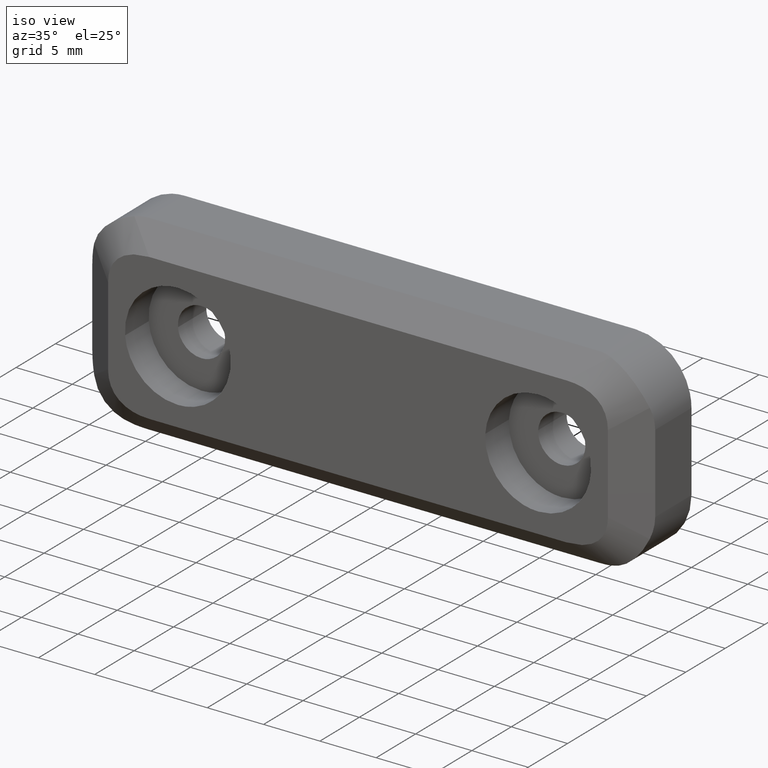
[diagram: clean part render]
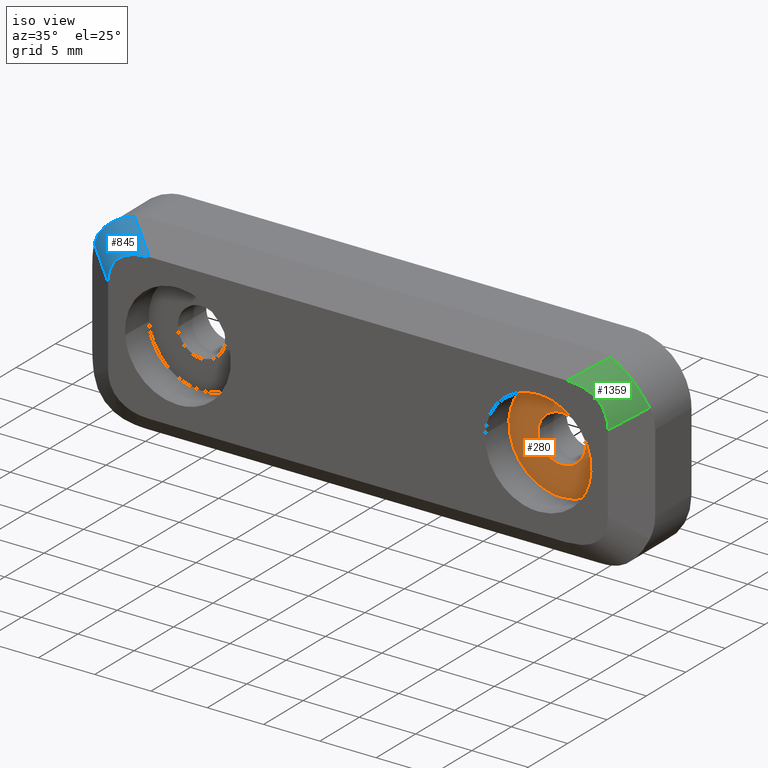
[diagram: same view with three faces highlighted in distinct colors, each labeled with its STEP entity id]
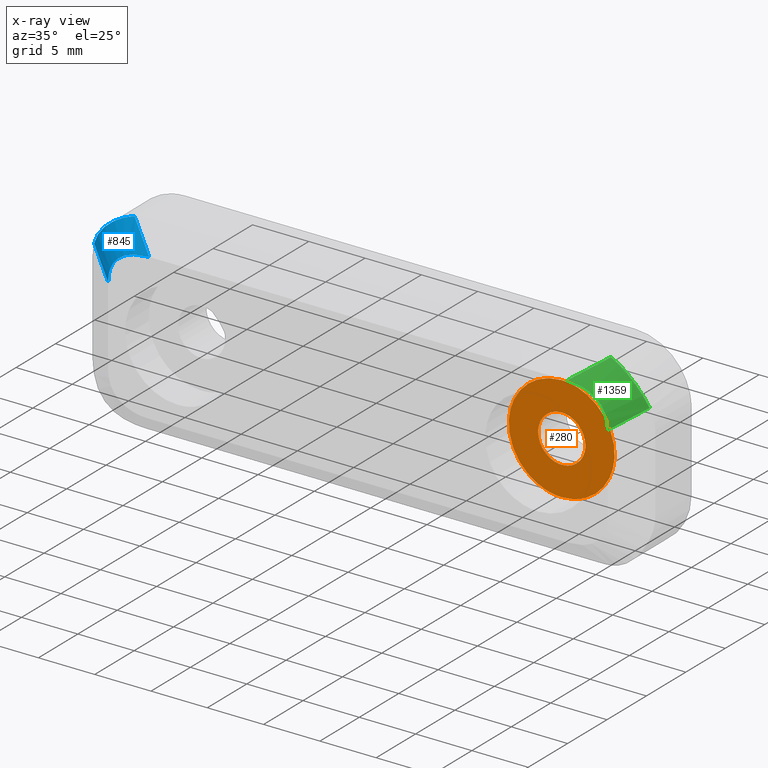
[diagram: x-ray of the same camera — body ghosted, the three highlighted faces saturated]
A machine part, iso view with three faces highlighted in distinct colors.
The next image is the same camera in x-ray (body ghosted, the three faces saturated) — at least one of them is partly hidden behind the body in this view.
Their STEP definitions:

[orange] entity #280 — the highlighted face is a freeform B-spline surface patch.
#143=CARTESIAN_POINT('',(10.830585679646809,-3.600000000000000,-5.169529981780976));
#144=CARTESIAN_POINT('',(10.830585679646809,-3.600000000000000,5.169530233908624));
#145=CARTESIAN_POINT('',(21.169414152268089,-3.600000000000000,-5.169529981780976));
#146=CARTESIAN_POINT('',(21.169414152268089,-3.600000000000000,5.169530233908623));
#147=B_SPLINE_SURFACE_WITH_KNOTS('',1,1,((#143,#145),(#144,#146)),.UNSPECIFIED.,.F.,.F.,.U.,(2,2),(2,2),(0.0,10.339060215689599),(0.0,10.338828472621280),.UNSPECIFIED.);
#148=CARTESIAN_POINT('',(16.0,-3.600000000000000,-4.700000000000000));
#149=VERTEX_POINT('',#148);
#150=CARTESIAN_POINT('',(20.691233552581039,-3.600000000000000,-0.286928135842115));
#151=VERTEX_POINT('',#150);
#152=CARTESIAN_POINT('',(16.0,-3.600000000000000,-4.700000000000000));
#153=CARTESIAN_POINT('',(20.421318514430066,-3.600000000000001,-4.700000000000001));
#154=CARTESIAN_POINT('',(20.691233552581046,-3.600000000000000,-0.286928135842115));
#162=(BOUNDED_CURVE()B_SPLINE_CURVE(2,(#152,#153,#154),.UNSPECIFIED.,.F.,.U.)B_SPLINE_CURVE_WITH_KNOTS((3,3),(0.0,0.239332962240928),.UNSPECIFIED.)CURVE()GEOMETRIC_REPRESENTATION_ITEM()RATIONAL_B_SPLINE_CURVE((1.0,0.719603993284385,0.976072041670972))REPRESENTATION_ITEM(''));
#163=EDGE_CURVE('',#149,#151,#162,.T.);
#164=ORIENTED_EDGE('',*,*,#163,.T.);
#165=CARTESIAN_POINT('',(16.0,-3.600000000000000,4.700000000000000));
#166=VERTEX_POINT('',#165);
#167=CARTESIAN_POINT('',(20.691233552581046,-3.600000000000000,-0.286928135842115));
#168=CARTESIAN_POINT('',(20.699999999999996,-3.599999999999999,-0.143597987517551));
#169=CARTESIAN_POINT('',(20.699999999999999,-3.600000000000000,0.0));
#170=CARTESIAN_POINT('',(20.699999999999996,-3.600000000000000,4.700000000000000));
#171=CARTESIAN_POINT('',(16.0,-3.600000000000000,4.700000000000000));
#179=(BOUNDED_CURVE()B_SPLINE_CURVE(2,(#167,#168,#169,#170,#171),.UNSPECIFIED.,.F.,.U.)B_SPLINE_CURVE_WITH_KNOTS((3,2,3),(0.239332962240928,0.250000000000000,0.500000000000000),.UNSPECIFIED.)CURVE()GEOMETRIC_REPRESENTATION_ITEM()RATIONAL_B_SPLINE_CURVE((0.976072041670972,0.987502787902163,1.0,0.707106781186547,1.0))REPRESENTATION_ITEM(''));
#180=EDGE_CURVE('',#151,#166,#179,.T.);
#181=ORIENTED_EDGE('',*,*,#180,.T.);
#182=CARTESIAN_POINT('',(11.308766447418961,-3.600000000000000,0.286928135842115));
#183=VERTEX_POINT('',#182);
#184=CARTESIAN_POINT('',(16.0,-3.600000000000000,4.700000000000000));
#185=CARTESIAN_POINT('',(11.578681485569946,-3.600000000000001,4.700000000000000));
#186=CARTESIAN_POINT('',(11.308766447418952,-3.599999999999999,0.286928135842116));
#194=(BOUNDED_CURVE()B_SPLINE_CURVE(2,(#184,#185,#186),.UNSPECIFIED.,.F.,.U.)B_SPLINE_CURVE_WITH_KNOTS((3,3),(0.500000000000000,0.739332962240928),.UNSPECIFIED.)CURVE()GEOMETRIC_REPRESENTATION_ITEM()RATIONAL_B_SPLINE_CURVE((1.0,0.719603993284385,0.976072041670972))REPRESENTATION_ITEM(''));
#195=EDGE_CURVE('',#166,#183,#194,.T.);
#196=ORIENTED_EDGE('',*,*,#195,.T.);
#197=CARTESIAN_POINT('',(11.308766447418952,-3.599999999999999,0.286928135842116));
#198=CARTESIAN_POINT('',(11.300000000000001,-3.600000000000000,0.143597987517552));
#199=CARTESIAN_POINT('',(11.300000000000001,-3.600000000000000,0.0));
#200=CARTESIAN_POINT('',(11.300000000000001,-3.600000000000000,-4.700000000000000));
#201=CARTESIAN_POINT('',(16.0,-3.600000000000000,-4.700000000000000));
#209=(BOUNDED_CURVE()B_SPLINE_CURVE(2,(#197,#198,#199,#200,#201),.UNSPECIFIED.,.F.,.U.)B_SPLINE_CURVE_WITH_KNOTS((3,2,3),(0.739332962240928,0.750000000000000,1.0),.UNSPECIFIED.)CURVE()GEOMETRIC_REPRESENTATION_ITEM()RATIONAL_B_SPLINE_CURVE((0.976072041670972,0.987502787902163,1.0,0.707106781186547,1.0))REPRESENTATION_ITEM(''));
#210=EDGE_CURVE('',#183,#149,#209,.T.);
#211=ORIENTED_EDGE('',*,*,#210,.T.);
#212=EDGE_LOOP('',(#164,#181,#196,#211));
#213=FACE_OUTER_BOUND('',#212,.T.);
#214=CARTESIAN_POINT('',(16.0,-3.600000000000000,2.100000000000025));
#215=VERTEX_POINT('',#214);
#216=CARTESIAN_POINT('',(13.903916923320651,-3.600000000000000,0.128201933131102));
#217=VERTEX_POINT('',#216);
#218=CARTESIAN_POINT('',(16.0,-3.600000000000000,2.100000000000025));
#219=CARTESIAN_POINT('',(14.024517259599902,-3.600000000000001,2.100000000000025));
#220=CARTESIAN_POINT('',(13.903916923320651,-3.600000000000001,0.128201933131101));
#228=(BOUNDED_CURVE()B_SPLINE_CURVE(2,(#218,#219,#220),.UNSPECIFIED.,.F.,.U.)B_SPLINE_CURVE_WITH_KNOTS((3,3),(0.500000000000000,0.739332962233086),.UNSPECIFIED.)CURVE()GEOMETRIC_REPRESENTATION_ITEM()RATIONAL_B_SPLINE_CURVE((1.0,0.719603993293572,0.976072041654166))REPRESENTATION_ITEM(''));
#229=EDGE_CURVE('',#215,#217,#228,.T.);
#230=ORIENTED_EDGE('',*,*,#229,.F.);
#231=CARTESIAN_POINT('',(18.096083076679349,-3.600000000000000,-0.128201933131102));
#232=VERTEX_POINT('',#231);
#233=CARTESIAN_POINT('',(18.096083076679346,-3.600000000000001,-0.128201933131102));
#234=CARTESIAN_POINT('',(18.100000000000030,-3.600000000000000,-0.064160802981139));
#235=CARTESIAN_POINT('',(18.100000000000030,-3.600000000000000,0.0));
#236=CARTESIAN_POINT('',(18.100000000000026,-3.600000000000000,2.100000000000025));
#237=CARTESIAN_POINT('',(16.0,-3.600000000000000,2.100000000000025));
#245=(BOUNDED_CURVE()B_SPLINE_CURVE(2,(#233,#234,#235,#236,#237),.UNSPECIFIED.,.F.,.U.)B_SPLINE_CURVE_WITH_KNOTS((3,2,3),(0.239332962233086,0.250000000000000,0.500000000000000),.UNSPECIFIED.)CURVE()GEOMETRIC_REPRESENTATION_ITEM()RATIONAL_B_SPLINE_CURVE((0.976072041654165,0.987502787892976,1.0,0.707106781186548,1.0))REPRESENTATION_ITEM(''));
#246=EDGE_CURVE('',#232,#215,#245,.T.);
#247=ORIENTED_EDGE('',*,*,#246,.F.);
#248=CARTESIAN_POINT('',(16.0,-3.600000000000000,-2.100000000000025));
#249=VERTEX_POINT('',#248);
#250=CARTESIAN_POINT('',(16.0,-3.600000000000000,-2.100000000000025));
#251=CARTESIAN_POINT('',(17.975482740400096,-3.600000000000000,-2.100000000000025));
#252=CARTESIAN_POINT('',(18.096083076679346,-3.600000000000001,-0.128201933131102));
#260=(BOUNDED_CURVE()B_SPLINE_CURVE(2,(#250,#251,#252),.UNSPECIFIED.,.F.,.U.)B_SPLINE_CURVE_WITH_KNOTS((3,3),(0.0,0.239332962233086),.UNSPECIFIED.)CURVE()GEOMETRIC_REPRESENTATION_ITEM()RATIONAL_B_SPLINE_CURVE((1.0,0.719603993293572,0.976072041654165))REPRESENTATION_ITEM(''));
#261=EDGE_CURVE('',#249,#232,#260,.T.);
#262=ORIENTED_EDGE('',*,*,#261,.F.);
#263=CARTESIAN_POINT('',(13.903916923320651,-3.600000000000001,0.128201933131101));
#264=CARTESIAN_POINT('',(13.899999999999977,-3.599999999999999,0.064160802981139));
#265=CARTESIAN_POINT('',(13.899999999999981,-3.600000000000000,0.0));
#266=CARTESIAN_POINT('',(13.899999999999974,-3.600000000000000,-2.100000000000025));
#267=CARTESIAN_POINT('',(16.0,-3.600000000000000,-2.100000000000025));
#275=(BOUNDED_CURVE()B_SPLINE_CURVE(2,(#263,#264,#265,#266,#267),.UNSPECIFIED.,.F.,.U.)B_SPLINE_CURVE_WITH_KNOTS((3,2,3),(0.739332962233086,0.750000000000000,1.0),.UNSPECIFIED.)CURVE()GEOMETRIC_REPRESENTATION_ITEM()RATIONAL_B_SPLINE_CURVE((0.976072041654166,0.987502787892976,1.0,0.707106781186548,1.0))REPRESENTATION_ITEM(''));
#276=EDGE_CURVE('',#217,#249,#275,.T.);
#277=ORIENTED_EDGE('',*,*,#276,.F.);
#278=EDGE_LOOP('',(#230,#247,#262,#277));
#279=FACE_BOUND('',#278,.T.);
#280=ADVANCED_FACE('',(#213,#279),#147,.F.);

[blue] entity #845 — the highlighted face is a freeform B-spline surface patch.
#769=CARTESIAN_POINT('',(-24.844580361955021,-4.708535620912073,5.223180418240770));
#770=CARTESIAN_POINT('',(-21.427154597051540,-7.149554024415364,2.782162014737446));
#771=CARTESIAN_POINT('',(-23.731832549381735,-5.602363695713251,7.674855430643981));
#772=CARTESIAN_POINT('',(-20.314406784478273,-8.043382099216544,5.233837027140656));
#773=CARTESIAN_POINT('',(-21.717892955092381,-4.100246997932264,8.992254164867152));
#774=CARTESIAN_POINT('',(-18.300467190188904,-6.541265401435561,6.551235761363829));
#782=(BOUNDED_SURFACE()B_SPLINE_SURFACE(1,2,((#769,#771,#773),(#770,#772,#774)),.UNSPECIFIED.,.F.,.F.,.U.)B_SPLINE_SURFACE_WITH_KNOTS((2,2),(3,3),(0.0,4.857565290462889),(0.0,5.278502488064073),.UNSPECIFIED.)GEOMETRIC_REPRESENTATION_ITEM()RATIONAL_B_SPLINE_SURFACE(((1.0,0.866037767593150,0.991463709294227),(1.0,0.866037767593150,0.991463709294227)))REPRESENTATION_ITEM('')SURFACE());
#783=CARTESIAN_POINT('',(-18.547422201250399,-6.600000000000000,6.500000000000110));
#784=VERTEX_POINT('',#783);
#785=CARTESIAN_POINT('',(-22.199999999986950,-6.600000000000000,3.497599544169730));
#786=VERTEX_POINT('',#785);
#787=CARTESIAN_POINT('',(-18.547422201250409,-6.600000000000000,6.500000000000119));
#788=CARTESIAN_POINT('',(-22.199999999985504,-6.600000000000000,6.500000000000117));
#789=CARTESIAN_POINT('',(-22.199999999986929,-6.600000000000000,3.497599544169711));
#797=(BOUNDED_CURVE()B_SPLINE_CURVE(2,(#787,#788,#789),.UNSPECIFIED.,.F.,.U.)CURVE()GEOMETRIC_REPRESENTATION_ITEM()QUASI_UNIFORM_CURVE()RATIONAL_B_SPLINE_CURVE((1.0,0.887523649140955,1.0))REPRESENTATION_ITEM(''));
#798=EDGE_CURVE('',#784,#786,#797,.T.);
#799=ORIENTED_EDGE('',*,*,#798,.F.);
#800=CARTESIAN_POINT('',(-21.157324868173301,-4.735783809340190,8.364216190659970));
#801=VERTEX_POINT('',#800);
#802=CARTESIAN_POINT('',(-21.157324868173301,-4.735783809340190,8.364216190659970));
#803=CARTESIAN_POINT('',(-18.547422201250399,-6.600000000000000,6.500000000000110));
#804=QUASI_UNIFORM_CURVE('',1,(#802,#803),.UNSPECIFIED.,.F.,.U.);
#805=EDGE_CURVE('',#801,#784,#804,.T.);
#806=ORIENTED_EDGE('',*,*,#805,.F.);
#807=CARTESIAN_POINT('',(-24.677318849210799,-4.830486536268090,5.267113007901680));
#808=VERTEX_POINT('',#807);
#809=CARTESIAN_POINT('',(-24.677318849210799,-4.830486536268090,5.267113007901690));
#810=CARTESIAN_POINT('',(-24.641775193857740,-4.855874861520245,5.361192451836409));
#811=CARTESIAN_POINT('',(-24.603175903615899,-4.879496344553398,5.454737429684625));
#812=CARTESIAN_POINT('',(-24.520372441189998,-4.922915611244711,5.639266185300980));
#813=CARTESIAN_POINT('',(-24.476235723277821,-4.942695411204676,5.730138008098341));
#814=CARTESIAN_POINT('',(-24.335661648530579,-4.996451833566717,5.998568632610938));
#815=CARTESIAN_POINT('',(-24.231089913558382,-5.024866218223009,6.171957649349905));
#816=CARTESIAN_POINT('',(-24.057592077121271,-5.056759644093710,6.423408356651303));
#817=CARTESIAN_POINT('',(-23.996978890141520,-5.065597368207693,6.505782837958501));
#818=CARTESIAN_POINT('',(-23.870037874590089,-5.079692061973678,6.667550720421766));
#819=CARTESIAN_POINT('',(-23.803411815850101,-5.084957214495672,6.747262956706250));
#820=CARTESIAN_POINT('',(-23.597489938760461,-5.095228166796488,6.978605862209430));
#821=CARTESIAN_POINT('',(-23.452053939274741,-5.094829759384459,7.122836733822052));
#822=CARTESIAN_POINT('',(-23.145423618361828,-5.080936582070533,7.392034514319255));
#823=CARTESIAN_POINT('',(-22.984227974736751,-5.067433449815277,7.516999359488982));
#824=CARTESIAN_POINT('',(-22.772764422991550,-5.042893282498739,7.661057105259946));
#825=CARTESIAN_POINT('',(-22.729971465098419,-5.037601188741109,7.689259071847846));
#826=CARTESIAN_POINT('',(-22.643374719555851,-5.026258651971474,7.744432336994717));
#827=CARTESIAN_POINT('',(-22.599484404229070,-5.020195244344778,7.771453820708143));
#828=CARTESIAN_POINT('',(-22.467070133714270,-5.000997999483407,7.850185351985436));
#829=CARTESIAN_POINT('',(-22.377790296102472,-4.986862628511027,7.899592824235614));
#830=CARTESIAN_POINT('',(-22.107007685433391,-4.940807401377775,8.038913246464762));
#831=CARTESIAN_POINT('',(-21.922575585127611,-4.905241565270952,8.119959175624670));
#832=CARTESIAN_POINT('',(-21.545911021882649,-4.826097024805684,8.259251913630854));
#833=CARTESIAN_POINT('',(-21.353681368169621,-4.782502181132982,8.317497818867182));
#834=CARTESIAN_POINT('',(-21.157324868173301,-4.735783809340190,8.364216190659970));
#835=B_SPLINE_CURVE_WITH_KNOTS('',3,(#809,#810,#811,#812,#813,#814,#815,#816,#817,#818,#819,#820,#821,#822,#823,#824,#825,#826,#827,#828,#829,#830,#831,#832,#833,#834),.UNSPECIFIED.,.F.,.U.,(4,2,2,2,2,2,2,2,2,2,2,2,4),(0.0,0.062499999999999,0.124999999999999,0.249999999999998,0.312499999999998,0.374999999999998,0.499999999999999,0.625000000000000,0.656250000000001,0.687500000000001,0.750000000000001,0.875000000000000,1.0),.UNSPECIFIED.);
#836=EDGE_CURVE('',#808,#801,#835,.T.);
#837=ORIENTED_EDGE('',*,*,#836,.F.);
#838=CARTESIAN_POINT('',(-22.199999999986950,-6.600000000000000,3.497599544169730));
#839=CARTESIAN_POINT('',(-24.677318849210799,-4.830486536268090,5.267113007901680));
#840=QUASI_UNIFORM_CURVE('',1,(#838,#839),.UNSPECIFIED.,.F.,.U.);
#841=EDGE_CURVE('',#786,#808,#840,.T.);
#842=ORIENTED_EDGE('',*,*,#841,.F.);
#843=EDGE_LOOP('',(#799,#806,#837,#842));
#844=FACE_OUTER_BOUND('',#843,.T.);
#845=ADVANCED_FACE('',(#844),#782,.T.);

[green] entity #1359 — the highlighted face is a freeform B-spline surface patch.
#909=CARTESIAN_POINT('',(18.547422201251099,-6.600000000000000,6.500000000000110));
#910=VERTEX_POINT('',#909);
#916=CARTESIAN_POINT('',(21.157324868174349,-4.735783809340250,8.364216190659910));
#917=VERTEX_POINT('',#916);
#918=CARTESIAN_POINT('',(18.547422201251099,-6.600000000000000,6.500000000000110));
#919=CARTESIAN_POINT('',(21.157324868174349,-4.735783809340250,8.364216190659910));
#920=QUASI_UNIFORM_CURVE('',1,(#918,#919),.UNSPECIFIED.,.F.,.U.);
#921=EDGE_CURVE('',#910,#917,#920,.T.);
#1049=CARTESIAN_POINT('',(22.199999999987700,-6.600000000000000,3.497599544169086));
#1050=VERTEX_POINT('',#1049);
#1056=CARTESIAN_POINT('',(22.199999999987700,-6.600000000000000,3.497599544169086));
#1057=CARTESIAN_POINT('',(22.199999999986936,-6.600000000000000,6.500000000000100));
#1058=CARTESIAN_POINT('',(18.547422201251099,-6.600000000000000,6.500000000000116));
#1066=(BOUNDED_CURVE()B_SPLINE_CURVE(2,(#1056,#1057,#1058),.UNSPECIFIED.,.F.,.U.)CURVE()GEOMETRIC_REPRESENTATION_ITEM()QUASI_UNIFORM_CURVE()RATIONAL_B_SPLINE_CURVE((1.0,0.887523649140931,1.0))REPRESENTATION_ITEM(''));
#1067=EDGE_CURVE('',#1050,#910,#1066,.T.);
#1305=CARTESIAN_POINT('',(21.424819339292220,-7.151594899053253,2.793222656471812));
#1306=CARTESIAN_POINT('',(24.842245104196120,-4.710576495550052,5.234241059975044));
#1307=CARTESIAN_POINT('',(20.311488024368231,-8.037833123063640,5.238124721375481));
#1308=CARTESIAN_POINT('',(23.728913789272131,-5.596814719560439,7.679143124878713));
#1309=CARTESIAN_POINT('',(18.303215393217290,-6.540346668986436,6.552219950909108));
#1310=CARTESIAN_POINT('',(21.720641158121200,-4.099328265483234,8.993238354412338));
#1318=(BOUNDED_SURFACE()B_SPLINE_SURFACE(1,2,((#1305,#1307,#1309),(#1306,#1308,#1310)),.UNSPECIFIED.,.F.,.F.,.U.)B_SPLINE_SURFACE_WITH_KNOTS((2,2),(3,3),(0.0,4.857565290463095),(0.0,5.265560568745311),.UNSPECIFIED.)GEOMETRIC_REPRESENTATION_ITEM()RATIONAL_B_SPLINE_SURFACE(((1.0,0.870355695939900,1.0),(1.0,0.870355695939900,1.0)))REPRESENTATION_ITEM('')SURFACE());
#1319=ORIENTED_EDGE('',*,*,#1067,.F.);
#1320=CARTESIAN_POINT('',(24.677318849211900,-4.830486536268181,5.267113007900961));
#1321=VERTEX_POINT('',#1320);
#1322=CARTESIAN_POINT('',(24.677318849211900,-4.830486536268181,5.267113007900961));
#1323=CARTESIAN_POINT('',(22.199999999987700,-6.600000000000000,3.497599544169086));
#1324=QUASI_UNIFORM_CURVE('',1,(#1322,#1323),.UNSPECIFIED.,.F.,.U.);
#1325=EDGE_CURVE('',#1321,#1050,#1324,.T.);
#1326=ORIENTED_EDGE('',*,*,#1325,.F.);
#1327=CARTESIAN_POINT('',(24.677318849211900,-4.830486536268181,5.267113007900961));
#1328=CARTESIAN_POINT('',(24.641775193858859,-4.855874861520342,5.361192451835697));
#1329=CARTESIAN_POINT('',(24.603175903616950,-4.879496344553522,5.454737429683898));
#1330=CARTESIAN_POINT('',(24.520372441191078,-4.922915611244848,5.639266185300290));
#1331=CARTESIAN_POINT('',(24.476235723278918,-4.942695411204818,5.730138008097670));
#1332=CARTESIAN_POINT('',(24.335661648531691,-4.996451833566872,5.998568632610319));
#1333=CARTESIAN_POINT('',(24.231089913559511,-5.024866218223172,6.171957649349321));
#1334=CARTESIAN_POINT('',(24.057592077122411,-5.056759644093883,6.423408356650763));
#1335=CARTESIAN_POINT('',(23.996978890142689,-5.065597368207867,6.505782837957980));
#1336=CARTESIAN_POINT('',(23.870037874591251,-5.079692061973854,6.667550720421276));
#1337=CARTESIAN_POINT('',(23.803411815851280,-5.084957214495849,6.747262956705775));
#1338=CARTESIAN_POINT('',(23.597489938761619,-5.095228166796664,6.978605862209006));
#1339=CARTESIAN_POINT('',(23.452053939275910,-5.094829759384634,7.122836733821661));
#1340=CARTESIAN_POINT('',(23.145423618362990,-5.080936582070707,7.392034514318929));
#1341=CARTESIAN_POINT('',(22.984227974737919,-5.067433449815444,7.516999359488688));
#1342=CARTESIAN_POINT('',(22.772764422992690,-5.042893282498897,7.661057105259681));
#1343=CARTESIAN_POINT('',(22.729971465099570,-5.037601188741264,7.689259071847586));
#1344=CARTESIAN_POINT('',(22.643374719556981,-5.026258651971625,7.744432336994474));
#1345=CARTESIAN_POINT('',(22.599484404230228,-5.020195244344930,7.771453820707903));
#1346=CARTESIAN_POINT('',(22.467070133715410,-5.000997999483553,7.850185351985216));
#1347=CARTESIAN_POINT('',(22.377790296103601,-4.986862628511167,7.899592824235413));
#1348=CARTESIAN_POINT('',(22.107007685434510,-4.940807401377900,8.038913246464592));
#1349=CARTESIAN_POINT('',(21.922575585128708,-4.905241565271061,8.119959175624524));
#1350=CARTESIAN_POINT('',(21.545911021883729,-4.826097024805771,8.259251913630751));
#1351=CARTESIAN_POINT('',(21.353681368170680,-4.782502181133058,8.317497818867103));
#1352=CARTESIAN_POINT('',(21.157324868174349,-4.735783809340250,8.364216190659910));
#1353=B_SPLINE_CURVE_WITH_KNOTS('',3,(#1327,#1328,#1329,#1330,#1331,#1332,#1333,#1334,#1335,#1336,#1337,#1338,#1339,#1340,#1341,#1342,#1343,#1344,#1345,#1346,#1347,#1348,#1349,#1350,#1351,#1352),.UNSPECIFIED.,.F.,.U.,(4,2,2,2,2,2,2,2,2,2,2,2,4),(0.0,0.062500000000001,0.125000000000002,0.250000000000003,0.312500000000005,0.375000000000006,0.500000000000008,0.625000000000009,0.656250000000009,0.687500000000009,0.750000000000007,0.875000000000004,1.0),.UNSPECIFIED.);
#1354=EDGE_CURVE('',#1321,#917,#1353,.T.);
#1355=ORIENTED_EDGE('',*,*,#1354,.T.);
#1356=ORIENTED_EDGE('',*,*,#921,.F.);
#1357=EDGE_LOOP('',(#1319,#1326,#1355,#1356));
#1358=FACE_OUTER_BOUND('',#1357,.T.);
#1359=ADVANCED_FACE('',(#1358),#1318,.T.);